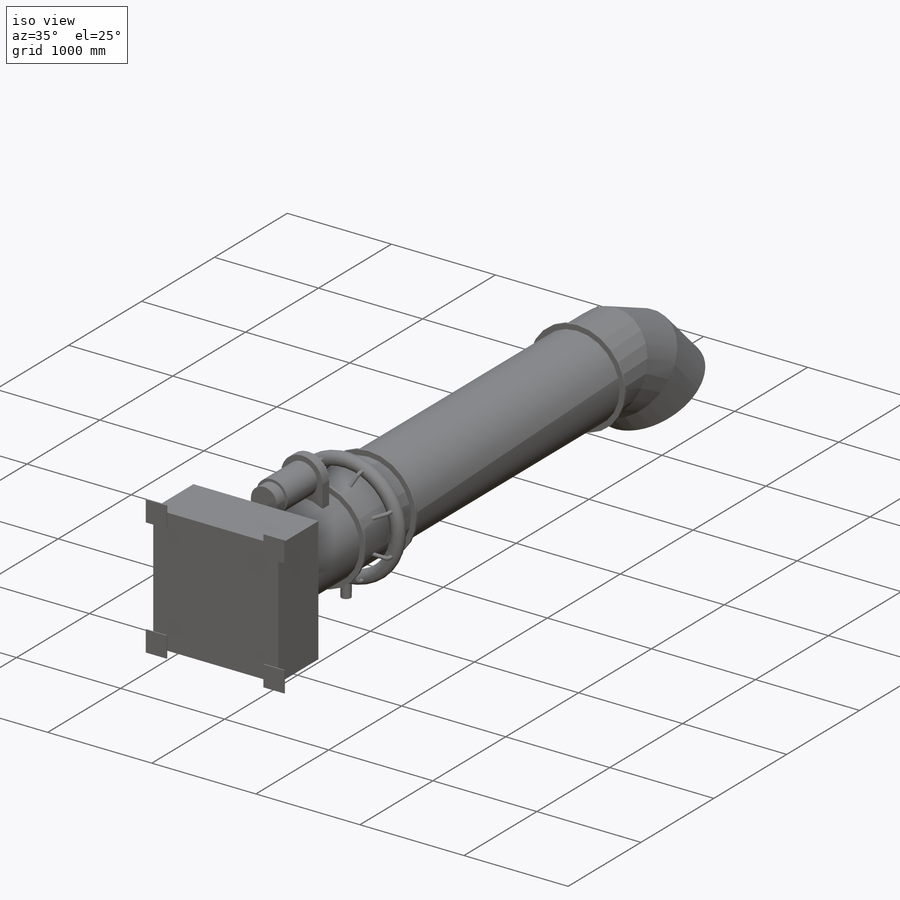
[diagram: iso view]
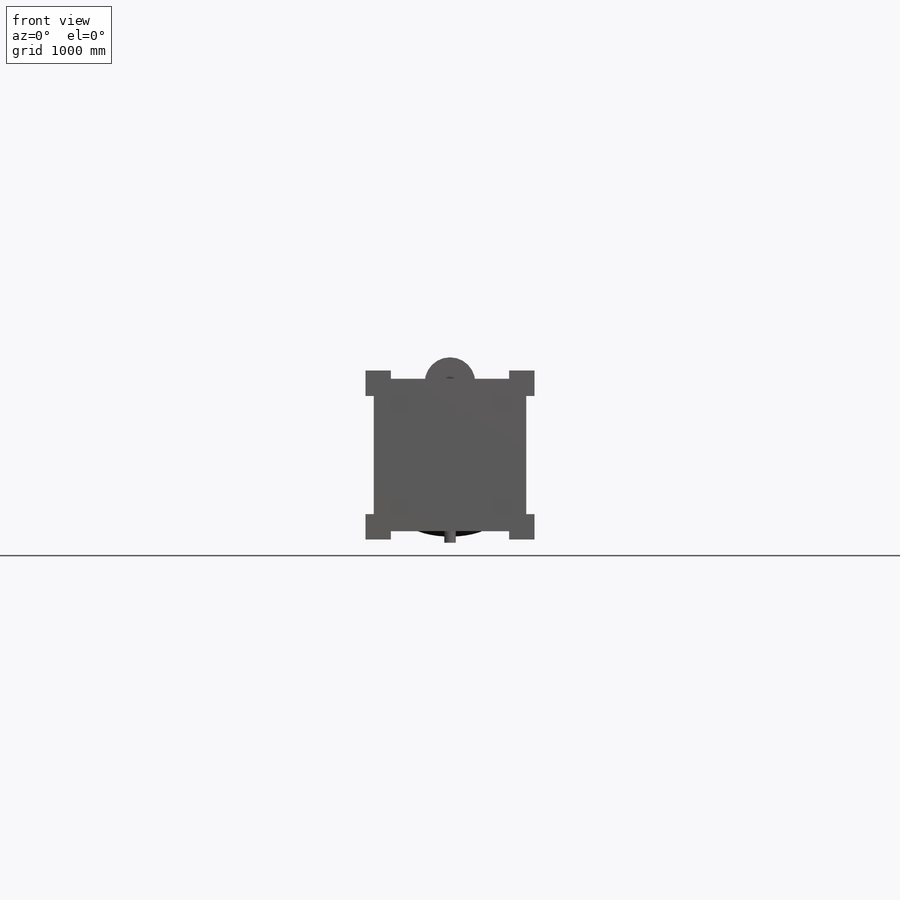
[diagram: front view]
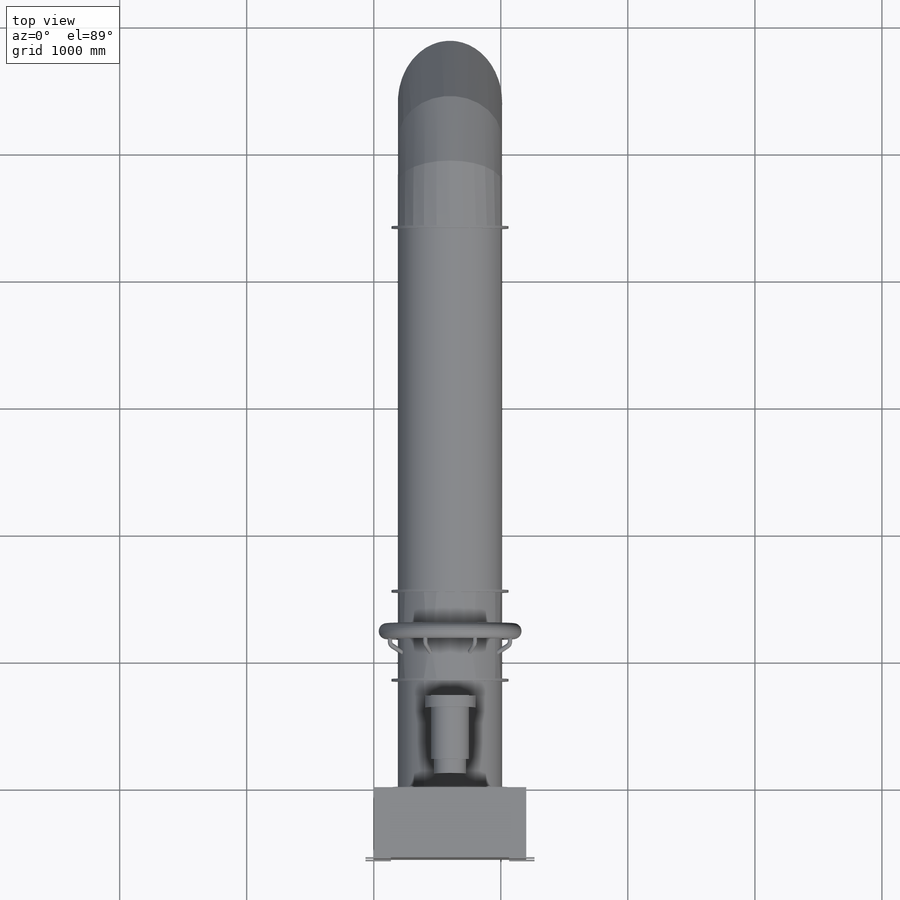
[diagram: top view]
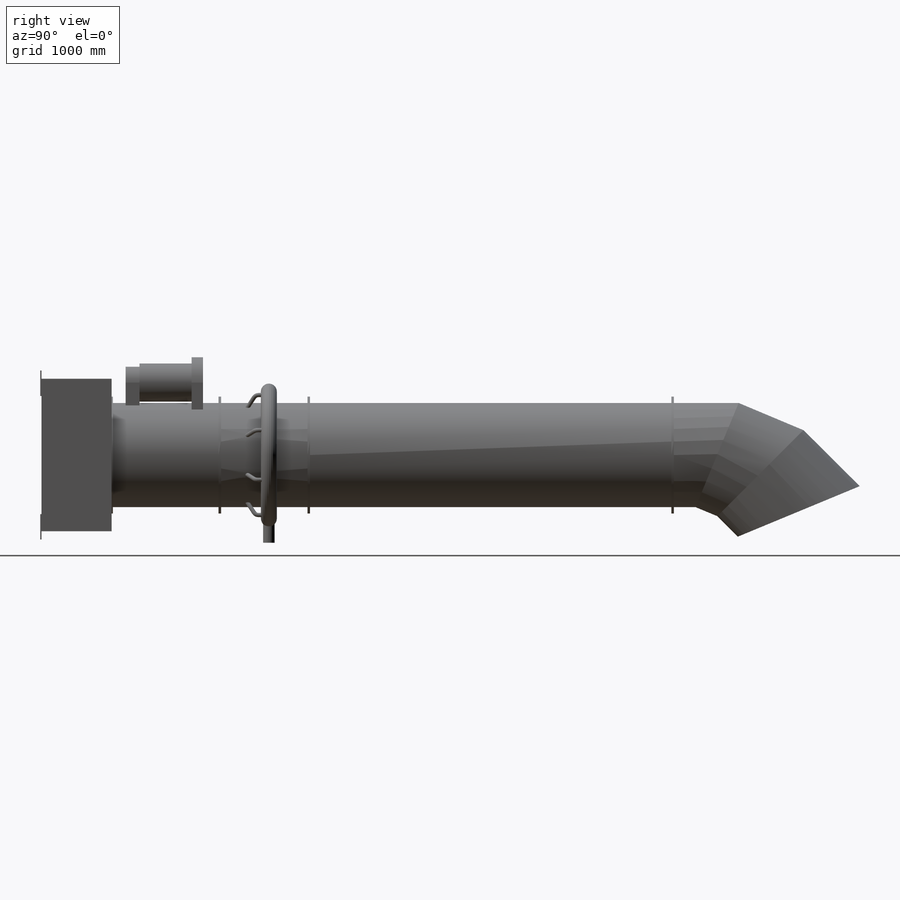
[diagram: right view]
SOLIDWORKS PART (.sldprt)
format: sldprt  version: not decoded by parser v0  size: 666,112 bytes
history: native  units: mm
features: sketch x17, plane x9, extrude x8, cut_extrude x3, revolve x2, material x1, sweep x1, pattern_circular x1 (+16 scaffold rows collapsed)
feature tree (58):
  scaffold x16  (default folders/planes/origin — collapsed)
  material  "Material <not specified>"
  sketch  "Sketch1"  dims[D1=1200.0mm D2=1200.0mm D3=600.0mm]
  extrude  "Extrude1"  Depth=552mm
  sketch  "Sketch2"  dims[D1=465.0mm D2=1330.0mm D3=1330.0mm D4=465.0mm]
  extrude  "Extrude2"  Depth=10mm
  sketch  "Sketch3"  dims[D1=820.0mm D2=920.0mm D3=10.0mm D4=842.0mm D5=20.0mm D6=920.0mm D7=820.0mm D8=700.0mm D9=920.0mm D10=20.0mm D11=820.0mm D12=5.0mm D13=920.0mm D14=20.0mm D15=4426.0mm]
  revolve  "Revolve1"  Angle=360deg
  sketch  "Sketch4"  dims[c1.D4=124.0mm c1.D1=~337.727909mm c2.D1=135.0deg c2.D2=~398.572499mm c3.D2=155.0deg c3.D3=5700.0mm c3.D5=500.0mm c3.D6=400.0mm c3.D7=1824.0mm c4.D6=1800.0mm]
  plane  "Plane1"  Offset=1800mm
  sketch  "Sketch6"  dims[c1.D2=33.4mm c1.D1=~511.226455mm c2.D1=22.5deg]
  plane  "Plane2"
  sketch  "Sketch7"  dims[D1=25.0mm]
  sweep  "Sweep1"
  pattern_circular  "CirPattern1"  Count=8 Angle=45deg
  sketch  "Sketch8"  dims[D1=250.0mm D2=570.0mm D3=600.0mm]
  extrude  "Extrude3"  Depth=110mm
  sketch  "Sketch9"  dims[D1=300.0mm]
  extrude  "Extrude4"  Depth=410mm
  sketch  "Sketch10"
  extrude  "Extrude5"  Depth=90mm
  plane  "Plane3"  Offset=600mm
  sketch  "Sketch11"  dims[D1=1800.0mm D2=90.0mm D3=4.0mm D4=690.0mm D5=~175.125553mm]
  revolve  "Revolve2"  Angle=360deg
  sketch  "Sketch12"  dims[c1.D1=5700.0mm c1.D2=~272.29043mm c2.D2=112.5deg c2.D3=~272.29043mm c3.D3=135.0deg c3.D4=340.0mm c3.D5=340.0mm c3.D6=~342.080771mm]
  sketch  "Sketch13"  dims[D1=0.0mm D2=5.0mm]
  extrude  "Extrude6"  Depth=560mm
  plane  "Plane4"
  plane  "Plane5"
  sketch  "Sketch14"
  cut_extrude  "Extrude7"  [1 undecoded]
  sketch  "Sketch15"  dims[D1=0.0mm]
  extrude  "Extrude8"  Depth=640mm
  plane  "Plane6"
  plane  "Plane7"
  sketch  "Sketch16"
  cut_extrude  "Extrude9"  [1 undecoded]
  sketch  "Sketch17"  dims[D1=0.0mm]
  extrude  "Extrude10"  Depth=660mm
  plane  "Plane8"
  plane  "Plane9"
  sketch  "Sketch18"
  cut_extrude  "Extrude11"  [1 undecoded]
decode coverage: 24 of 32 modeling features carry decoded parameters
note: ~ marks probable driven/reference dimensions
note: 3 parameter values undecoded
summary: no parameter record found for 3 features
note: suppression state not decoded; provenance and decode notes live in map.json
